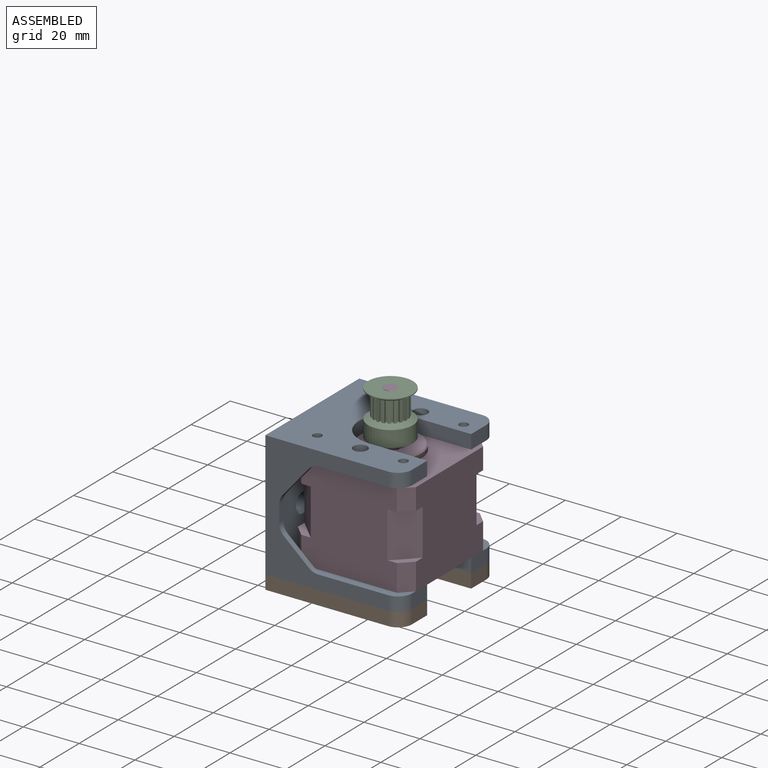
[diagram: assembled view]
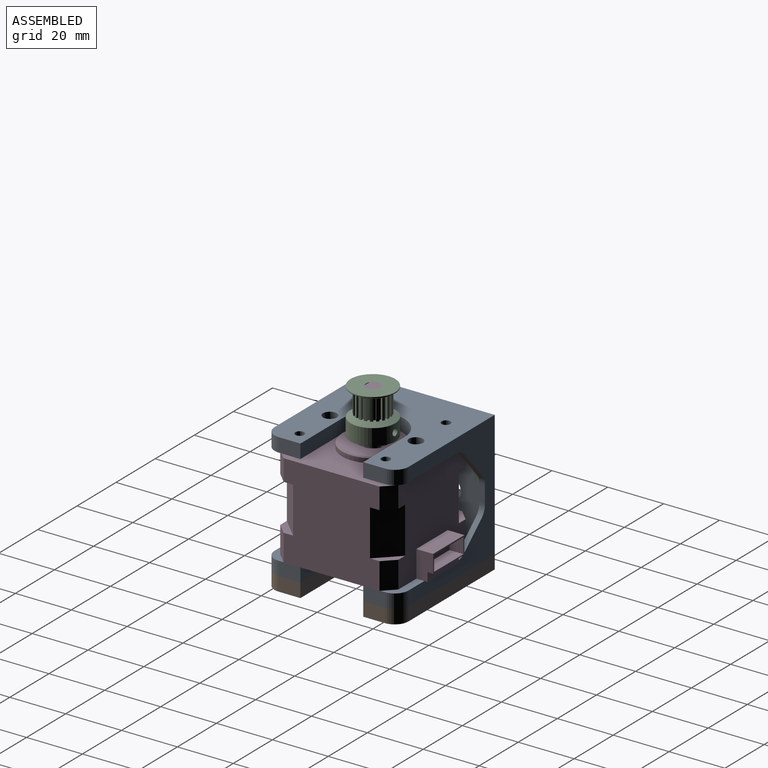
[diagram: assembled view, second angle]
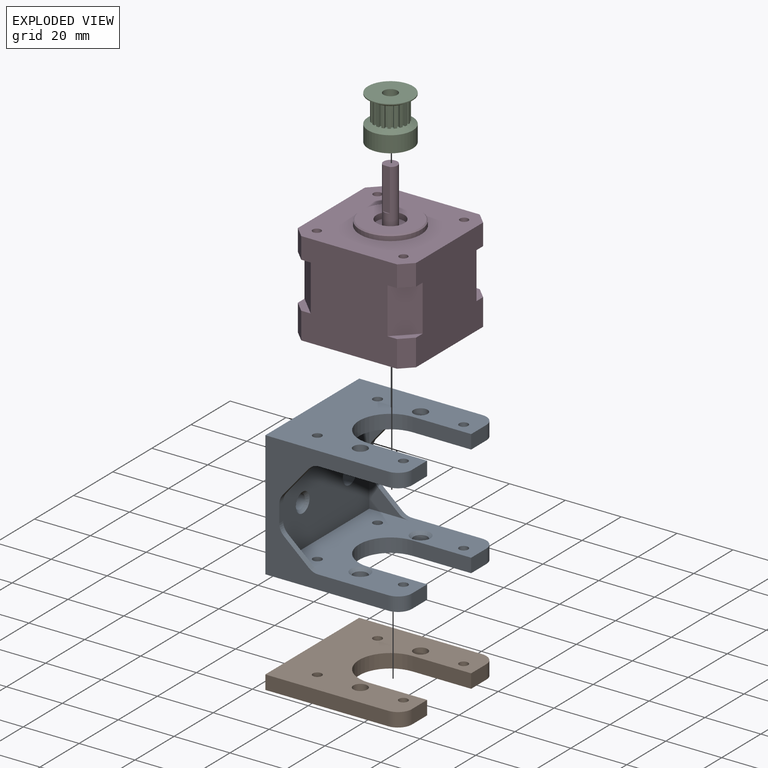
[diagram: exploded view]
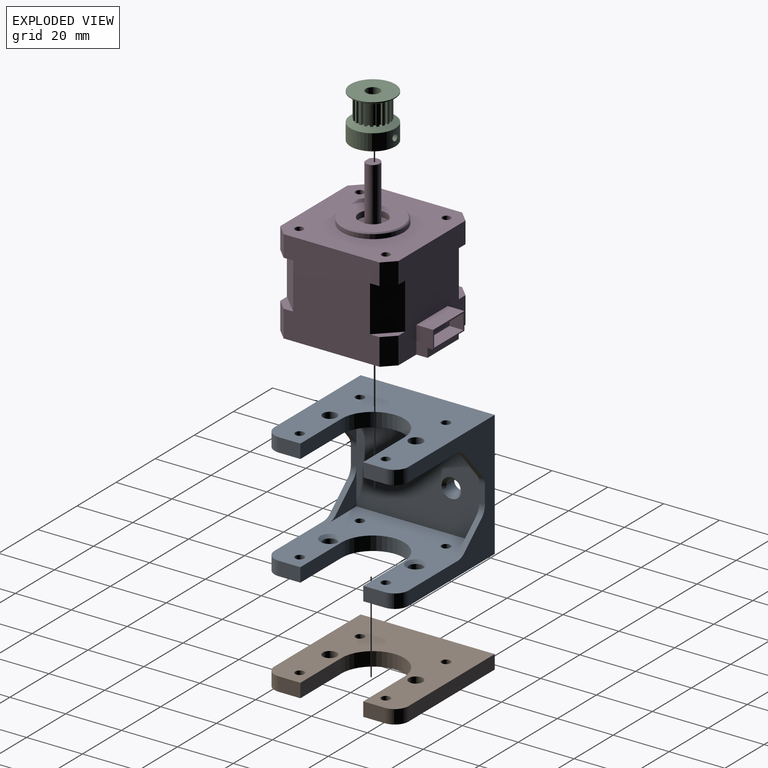
[diagram: exploded view, second angle]
ASSEMBLY  parts=4 mates=7
PART A: 58 faces, bbox 49x48x45 mm
  f0: plane 48x35mm, normal (1,0,0), area 1487.8mm2, adj f1,f6,f7,f9,f33,f35,f37,f39
  f1: plane 48x44mm, normal (0,0,-1), area 1263.6mm2, adj f0,f2,f7,f9,f12,f23,f24,f25
  f2: plane 7.75x5mm, normal (1,0,0), area 38.7mm2, adj f1,f5,f28,f43
  f3: plane 7.75x5mm, normal (1,0,0), area 38.8mm2, adj f4,f6,f19,f40
  f4: plane 49x48mm, normal (0,0,-1), area 1598.5mm2, adj f3,f7,f9,f11,f13,f14,f15,f16
  f5: plane 49x48mm, normal (0,0,1), area 1598.5mm2, adj f2,f7,f9,f11,f12,f23,f24,f25
  f6: plane 48x44mm, normal (0,0,1), area 1265.3mm2, adj f0,f3,f7,f9,f13,f14,f15,f16
  f7: plane 45x44mm, normal (0,1,0), area 765.5mm2, adj f0,f1,f4,f5,f6,f11,f32,f34
  f8: cylinder r=2.5mm len=5mm, axis (-1,0,0), area 62.8mm2, adj f11,f57
  f9: plane 45x44mm, normal (0,-1,0), area 765.5mm2, adj f0,f1,f4,f5,f6,f11,f36,f38
  f10: cylinder r=2.5mm len=5mm, axis (-1,0,0), area 62.8mm2, adj f11,f56
  f11: plane 48x45mm, normal (-1,0,0), area 2120.7mm2, adj f4,f5,f7,f8,f9,f10
  f12: plane 7.75x5mm, normal (1,0,0), area 38.8mm2, adj f1,f5,f30,f42
  f13: plane 7.75x5mm, normal (1,0,0), area 38.8mm2, adj f4,f6,f21,f41
  f14: cylinder r=1.6mm len=5mm, axis (0,0,1), area 50.3mm2, adj f4,f6
  f15: cylinder r=1.6mm len=5mm, axis (0,0,1), area 50.3mm2, adj f4,f6
  f16: cylinder r=1.6mm len=5mm, axis (0,0,1), area 50.3mm2, adj f4,f6
  f17: cylinder r=2.5mm len=5mm, axis (0,0,1), area 62.8mm2, adj f4,f44
  f18: cylinder r=2.5mm len=5mm, axis (0,0,1), area 62.8mm2, adj f4,f45
  f19: plane 21x5mm, normal (0,1,0), area 105mm2, adj f3,f4,f6,f20
  f20: cylinder r=11.25mm len=22.5mm, axis (0,0,1), area 176.7mm2, adj f4,f6,f19,f21
  f21: plane 21x5mm, normal (0,-1,0), area 105mm2, adj f4,f6,f13,f20
  f22: cylinder r=1.6mm len=5mm, axis (0,0,1), area 50.3mm2, adj f4,f6
  f23: cylinder r=1.6mm len=5mm, axis (0,0,1), area 50.3mm2, adj f1,f5
  f24: cylinder r=1.6mm len=5mm, axis (0,0,1), area 50.3mm2, adj f1,f5
  f25: cylinder r=1.6mm len=5mm, axis (0,0,1), area 50.3mm2, adj f1,f5
  f26: cylinder r=2.5mm len=5mm, axis (0,0,1), area 62.8mm2, adj f5,f46
  f27: cylinder r=2.5mm len=5mm, axis (0,0,1), area 62.8mm2, adj f5,f47
  f28: plane 21x5mm, normal (0,1,0), area 105mm2, adj f1,f2,f5,f29
  f29: cylinder r=11.25mm len=22.5mm, axis (0,0,1), area 176.7mm2, adj f1,f5,f28,f30
  f30: plane 21x5mm, normal (0,-1,0), area 105mm2, adj f1,f5,f12,f29
  f31: cylinder r=1.6mm len=5mm, axis (0,0,1), area 50.3mm2, adj f1,f5
  f32: plane 10.96x9.31mm, normal (0.76,0,-0.65), area 28.8mm2, adj f7,f33,f54,f55
  f33: plane 15.96x14.31mm, normal (0,-1,0), area 85.8mm2, adj f0,f1,f32,f54,f55
  f34: plane 8.89x7.84mm, normal (0.66,0,0.75), area 23.7mm2, adj f7,f35,f52,f53
  f35: plane 13.89x12.84mm, normal (0,-1,0), area 64.6mm2, adj f0,f6,f34,f52,f53
  f36: plane 10.96x9.31mm, normal (0.76,0,-0.65), area 28.8mm2, adj f9,f37,f50,f51
  f37: plane 15.96x14.31mm, normal (0,1,0), area 85.8mm2, adj f0,f1,f36,f50,f51
  f38: plane 8.89x7.84mm, normal (0.66,0,0.75), area 23.7mm2, adj f9,f39,f48,f49
  f39: plane 13.89x12.84mm, normal (0,1,0), area 64.6mm2, adj f0,f6,f38,f48,f49
  f40: cylinder r=5mm len=5mm, axis (0,0,1), area 39.3mm2, adj f3,f4,f6,f9
  f41: cylinder r=5mm len=5mm, axis (0,0,-1), area 39.3mm2, adj f4,f6,f7,f13
  f42: cylinder r=5mm len=5mm, axis (0,0,-1), area 39.3mm2, adj f1,f5,f7,f12
  f43: cylinder r=5mm len=5mm, axis (0,0,1), area 39.3mm2, adj f1,f2,f5,f9
  f44: cone r=3.5mm half-angle=45deg, axis (0,0,1), area 26.7mm2, adj f6,f17
  f45: cone r=2.5mm half-angle=45deg, axis (0,0,1), area 26.7mm2, adj f6,f18
  f46: cone r=2.5mm half-angle=45deg, axis (0,0,-1), area 26.7mm2, adj f1,f26
  f47: cone r=3.5mm half-angle=45deg, axis (0,0,-1), area 26.7mm2, adj f1,f27
  f48: cylinder r=5mm len=3.31mm, axis (0,1,0), area 7.2mm2, adj f6,f9,f38,f39
  f49: cylinder r=5mm len=3.75mm, axis (0,1,0), area 8.5mm2, adj f0,f9,f38,f39
  f50: cylinder r=5mm len=3.24mm, axis (0,-1,0), area 7mm2, adj f0,f9,f36,f37
  f51: cylinder r=5mm len=3.81mm, axis (0,1,0), area 8.7mm2, adj f1,f9,f36,f37
  f52: cylinder r=5mm len=3.31mm, axis (0,1,0), area 7.2mm2, adj f6,f7,f34,f35
  f53: cylinder r=5mm len=3.75mm, axis (0,1,0), area 8.5mm2, adj f0,f7,f34,f35
  f54: cylinder r=5mm len=3.24mm, axis (0,-1,0), area 7mm2, adj f0,f7,f32,f33
  f55: cylinder r=5mm len=3.81mm, axis (0,1,0), area 8.7mm2, adj f1,f7,f32,f33
  f56: cone r=3.5mm half-angle=45deg, axis (1,0,0), area 26.7mm2, adj f0,f10
  f57: cone r=2.5mm half-angle=45deg, axis (1,0,0), area 26.7mm2, adj f0,f8
PART B: 20 faces, bbox 49x48x5 mm
  f0: plane 49x48mm, normal (0,0,-1), area 1560.8mm2, adj f1,f3,f4,f5,f6,f7,f8,f9
  f1: plane 7.75x5mm, normal (1,0,0), area 38.7mm2, adj f0,f2,f12,f17
  f2: plane 49x48mm, normal (0,0,1), area 1598.5mm2, adj f1,f3,f4,f5,f6,f7,f8,f9
  f3: plane 44x5mm, normal (0,1,0), area 220mm2, adj f0,f2,f5,f16
  f4: plane 44x5mm, normal (0,-1,0), area 220mm2, adj f0,f2,f5,f17
  f5: plane 48x5mm, normal (-1,0,0), area 240mm2, adj f0,f2,f3,f4
  f6: plane 7.75x5mm, normal (1,0,0), area 38.8mm2, adj f0,f2,f14,f16
  f7: cylinder r=1.6mm len=5mm, axis (0,0,1), area 50.3mm2, adj f0,f2
  f8: cylinder r=1.6mm len=5mm, axis (0,0,1), area 50.3mm2, adj f0,f2
  f9: cylinder r=1.6mm len=5mm, axis (0,0,1), area 50.3mm2, adj f0,f2
  f10: cylinder r=2.5mm len=5mm, axis (0,0,1), area 62.8mm2, adj f2,f18
  f11: cylinder r=2.5mm len=5mm, axis (0,0,1), area 62.8mm2, adj f2,f19
  f12: plane 21x5mm, normal (0,1,0), area 105mm2, adj f0,f1,f2,f13
  f13: cylinder r=11.25mm len=22.5mm, axis (0,0,1), area 176.7mm2, adj f0,f2,f12,f14
  f14: plane 21x5mm, normal (0,-1,0), area 105mm2, adj f0,f2,f6,f13
  f15: cylinder r=1.6mm len=5mm, axis (0,0,1), area 50.3mm2, adj f0,f2
  f16: cylinder r=5mm len=5mm, axis (0,0,-1), area 39.3mm2, adj f0,f2,f3,f6
  f17: cylinder r=5mm len=5mm, axis (0,0,1), area 39.3mm2, adj f0,f1,f2,f4
  f18: cone r=2.5mm half-angle=45deg, axis (0,0,-1), area 26.7mm2, adj f0,f10
  f19: cone r=3.5mm half-angle=45deg, axis (0,0,-1), area 26.7mm2, adj f0,f11
PART C: 128 faces, bbox 15.9x16x16 mm
  f0: cylinder r=8mm len=16mm, axis (1,0,0), area 288.9mm2, adj f2,f3,f7
  f1: cylinder r=2.5mm len=15.9mm, axis (-1,0,0), area 244.7mm2, adj f2,f3,f5
  f2: plane 16x16mm, normal (-1,0,0), area 181.4mm2, adj f0,f1
  f3: cylinder r=1.25mm len=5.84mm, axis (0,1,0), area 44.1mm2, adj f0,f1
  f4: cylinder r=8mm len=16mm, axis (-1,0,0), area 17.4mm2, adj f5,f6
  f5: plane 16x16mm, normal (1,0,0), area 181.4mm2, adj f1,f4
  f6: cone r=6mm half-angle=60deg, axis (1,0,0), area 101.6mm2, adj f4,f11,f13,f17,f19,f23,f25,f29
  f7: cone r=6mm half-angle=60deg, axis (-1,0,0), area 101.6mm2, adj f0,f11,f14,f17,f20,f23,f26,f29
  f8: cylinder r=5mm len=7.4mm, axis (-1,0,0), area 5.5mm2, adj f9,f124,f125,f126
  f9: plane 7.4x0.99mm, normal (0,-0.99,-0.15), area 7.4mm2, adj f8,f11,f124,f125
  f10: cylinder r=5mm len=7.4mm, axis (-1,0,0), area 5.5mm2, adj f12,f13,f14,f15
  f11: cylinder r=6mm len=7.4mm, axis (-1,0,0), area 7.4mm2, adj f6,f7,f9,f12
  f12: plane 7.4x0.95mm, normal (0,0.95,0.31), area 7.4mm2, adj f10,f11,f13,f14
  f13: plane 1.23x1.13mm, normal (-1,0,0), area 0.8mm2, adj f6,f10,f12,f15
  f14: plane 1.23x1.13mm, normal (1,0,0), area 0.8mm2, adj f7,f10,f12,f15
  f15: plane 7.4x0.9mm, normal (0,-0.89,-0.45), area 7.4mm2, adj f10,f13,f14,f17
  f16: cylinder r=5mm len=7.4mm, axis (-1,0,0), area 5.5mm2, adj f18,f19,f20,f21
  f17: cylinder r=6mm len=7.4mm, axis (-1,0,0), area 7.4mm2, adj f6,f7,f15,f18
  f18: plane 7.4x0.81mm, normal (0,0.81,0.59), area 7.4mm2, adj f16,f17,f19,f20
  f19: plane 1.29x1.27mm, normal (-1,0,0), area 0.8mm2, adj f6,f16,f18,f21
  f20: plane 1.29x1.27mm, normal (1,0,0), area 0.8mm2, adj f7,f16,f18,f21
  f21: plane 7.4x0.71mm, normal (0,-0.71,-0.7), area 7.4mm2, adj f16,f19,f20,f23
  f22: cylinder r=5mm len=7.4mm, axis (-1,0,0), area 5.5mm2, adj f24,f25,f26,f27
  f23: cylinder r=6mm len=7.4mm, axis (-1,0,0), area 7.4mm2, adj f6,f7,f21,f24
  f24: plane 7.4x0.81mm, normal (0,0.59,0.81), area 7.4mm2, adj f22,f23,f25,f26
  f25: plane 1.28x1.22mm, normal (-1,0,0), area 0.8mm2, adj f6,f22,f24,f27
  f26: plane 1.28x1.22mm, normal (1,0,0), area 0.8mm2, adj f7,f22,f24,f27
  f27: plane 7.4x0.89mm, normal (0,-0.46,-0.89), area 7.4mm2, adj f22,f25,f26,f29
  f28: cylinder r=5mm len=7.4mm, axis (-1,0,0), area 5.5mm2, adj f30,f31,f32,f33
  f29: cylinder r=6mm len=7.4mm, axis (-1,0,0), area 7.4mm2, adj f6,f7,f27,f30
  f30: plane 7.4x0.95mm, normal (0,0.31,0.95), area 7.4mm2, adj f28,f29,f31,f32
  f31: plane 1.16x1.03mm, normal (-1,0,0), area 0.8mm2, adj f6,f28,f30,f33
  f32: plane 1.16x1.03mm, normal (1,0,0), area 0.8mm2, adj f7,f28,f30,f33
  f33: plane 7.4x0.99mm, normal (0,-0.17,-0.99), area 7.4mm2, adj f28,f31,f32,f35
  f34: cylinder r=5mm len=7.4mm, axis (-1,0,0), area 5.5mm2, adj f36,f37,f38,f39
  f35: cylinder r=6mm len=7.4mm, axis (-1,0,0), area 7.4mm2, adj f6,f7,f33,f36
  f36: plane 7.4x1mm, normal (0,0,1), area 7.4mm2, adj f34,f35,f37,f38
  f37: plane 1.06x0.89mm, normal (-1,0,0), area 0.8mm2, adj f6,f34,f36,f39
  f38: plane 1.06x0.89mm, normal (1,0,0), area 0.8mm2, adj f7,f34,f36,f39
  f39: plane 7.4x0.99mm, normal (0,0.15,-0.99), area 7.4mm2, adj f34,f37,f38,f41
  f40: cylinder r=5mm len=7.4mm, axis (-1,0,0), area 5.5mm2, adj f42,f43,f44,f45
  f41: cylinder r=6mm len=7.4mm, axis (-1,0,0), area 7.4mm2, adj f6,f7,f39,f42
  f42: plane 7.4x0.95mm, normal (0,-0.31,0.95), area 7.4mm2, adj f40,f41,f43,f44
  f43: plane 1.23x1.13mm, normal (-1,0,0), area 0.8mm2, adj f6,f40,f42,f45
  f44: plane 1.23x1.13mm, normal (1,0,0), area 0.8mm2, adj f7,f40,f42,f45
  f45: plane 7.4x0.9mm, normal (0,0.45,-0.89), area 7.4mm2, adj f40,f43,f44,f47
  f46: cylinder r=5mm len=7.4mm, axis (-1,0,0), area 5.5mm2, adj f48,f49,f50,f51
  f47: cylinder r=6mm len=7.4mm, axis (-1,0,0), area 7.4mm2, adj f6,f7,f45,f48
  f48: plane 7.4x0.81mm, normal (0,-0.59,0.81), area 7.4mm2, adj f46,f47,f49,f50
  f49: plane 1.29x1.27mm, normal (-1,0,0), area 0.8mm2, adj f6,f46,f48,f51
  f50: plane 1.29x1.27mm, normal (1,0,0), area 0.8mm2, adj f7,f46,f48,f51
  f51: plane 7.4x0.71mm, normal (0,0.7,-0.71), area 7.4mm2, adj f46,f49,f50,f53
  f52: cylinder r=5mm len=7.4mm, axis (-1,0,0), area 5.5mm2, adj f54,f55,f56,f57
  f53: cylinder r=6mm len=7.4mm, axis (-1,0,0), area 7.4mm2, adj f6,f7,f51,f54
  f54: plane 7.4x0.81mm, normal (0,-0.81,0.59), area 7.4mm2, adj f52,f53,f55,f56
  f55: plane 1.28x1.22mm, normal (-1,0,0), area 0.8mm2, adj f6,f52,f54,f57
  f56: plane 1.28x1.22mm, normal (1,0,0), area 0.8mm2, adj f7,f52,f54,f57
  f57: plane 7.4x0.89mm, normal (0,0.89,-0.46), area 7.4mm2, adj f52,f55,f56,f59
  f58: cylinder r=5mm len=7.4mm, axis (-1,0,0), area 5.5mm2, adj f60,f61,f62,f63
  f59: cylinder r=6mm len=7.4mm, axis (-1,0,0), area 7.4mm2, adj f6,f7,f57,f60
  f60: plane 7.4x0.95mm, normal (0,-0.95,0.31), area 7.4mm2, adj f58,f59,f61,f62
  f61: plane 1.16x1.03mm, normal (-1,0,0), area 0.8mm2, adj f6,f58,f60,f63
  f62: plane 1.16x1.03mm, normal (1,0,0), area 0.8mm2, adj f7,f58,f60,f63
  f63: plane 7.4x0.99mm, normal (0,0.99,-0.17), area 7.4mm2, adj f58,f61,f62,f65
  f64: cylinder r=5mm len=7.4mm, axis (-1,0,0), area 5.5mm2, adj f66,f67,f68,f69
  f65: cylinder r=6mm len=7.4mm, axis (-1,0,0), area 7.4mm2, adj f6,f7,f63,f66
  f66: plane 7.4x1mm, normal (0,-1,0), area 7.4mm2, adj f64,f65,f67,f68
  f67: plane 1.06x0.89mm, normal (-1,0,0), area 0.8mm2, adj f6,f64,f66,f69
  f68: plane 1.06x0.89mm, normal (1,0,0), area 0.8mm2, adj f7,f64,f66,f69
  f69: plane 7.4x0.99mm, normal (0,0.99,0.15), area 7.4mm2, adj f64,f67,f68,f71
  f70: cylinder r=5mm len=7.4mm, axis (-1,0,0), area 5.5mm2, adj f72,f73,f74,f75
  f71: cylinder r=6mm len=7.4mm, axis (-1,0,0), area 7.4mm2, adj f6,f7,f69,f72
  f72: plane 7.4x0.95mm, normal (0,-0.95,-0.31), area 7.4mm2, adj f70,f71,f73,f74
  f73: plane 1.23x1.13mm, normal (-1,0,0), area 0.8mm2, adj f6,f70,f72,f75
  f74: plane 1.23x1.13mm, normal (1,0,0), area 0.8mm2, adj f7,f70,f72,f75
  f75: plane 7.4x0.9mm, normal (0,0.89,0.45), area 7.4mm2, adj f70,f73,f74,f77
  f76: cylinder r=5mm len=7.4mm, axis (-1,0,0), area 5.5mm2, adj f78,f79,f80,f81
  f77: cylinder r=6mm len=7.4mm, axis (-1,0,0), area 7.4mm2, adj f6,f7,f75,f78
  f78: plane 7.4x0.81mm, normal (0,-0.81,-0.59), area 7.4mm2, adj f76,f77,f79,f80
  f79: plane 1.29x1.27mm, normal (-1,0,0), area 0.8mm2, adj f6,f76,f78,f81
  f80: plane 1.29x1.27mm, normal (1,0,0), area 0.8mm2, adj f7,f76,f78,f81
  f81: plane 7.4x0.71mm, normal (0,0.71,0.7), area 7.4mm2, adj f76,f79,f80,f83
  f82: cylinder r=5mm len=7.4mm, axis (-1,0,0), area 5.5mm2, adj f84,f85,f86,f87
  f83: cylinder r=6mm len=7.4mm, axis (-1,0,0), area 7.4mm2, adj f6,f7,f81,f84
  f84: plane 7.4x0.81mm, normal (0,-0.59,-0.81), area 7.4mm2, adj f82,f83,f85,f86
  f85: plane 1.28x1.22mm, normal (-1,0,0), area 0.8mm2, adj f6,f82,f84,f87
  f86: plane 1.28x1.22mm, normal (1,0,0), area 0.8mm2, adj f7,f82,f84,f87
  f87: plane 7.4x0.89mm, normal (0,0.46,0.89), area 7.4mm2, adj f82,f85,f86,f89
  f88: cylinder r=5mm len=7.4mm, axis (-1,0,0), area 5.5mm2, adj f90,f91,f92,f93
  f89: cylinder r=6mm len=7.4mm, axis (-1,0,0), area 7.4mm2, adj f6,f7,f87,f90
  f90: plane 7.4x0.95mm, normal (0,-0.31,-0.95), area 7.4mm2, adj f88,f89,f91,f92
  f91: plane 1.16x1.03mm, normal (-1,0,0), area 0.8mm2, adj f6,f88,f90,f93
  f92: plane 1.16x1.03mm, normal (1,0,0), area 0.8mm2, adj f7,f88,f90,f93
  f93: plane 7.4x0.99mm, normal (0,0.17,0.99), area 7.4mm2, adj f88,f91,f92,f95
  f94: cylinder r=5mm len=7.4mm, axis (-1,0,0), area 5.5mm2, adj f96,f97,f98,f99
  f95: cylinder r=6mm len=7.4mm, axis (-1,0,0), area 7.4mm2, adj f6,f7,f93,f96
  f96: plane 7.4x1mm, normal (0,0,-1), area 7.4mm2, adj f94,f95,f97,f98
  f97: plane 1.06x0.89mm, normal (-1,0,0), area 0.8mm2, adj f6,f94,f96,f99
  f98: plane 1.06x0.89mm, normal (1,0,0), area 0.8mm2, adj f7,f94,f96,f99
  f99: plane 7.4x0.99mm, normal (0,-0.15,0.99), area 7.4mm2, adj f94,f97,f98,f101
  f100: cylinder r=5mm len=7.4mm, axis (-1,0,0), area 5.5mm2, adj f102,f103,f104,f105
  f101: cylinder r=6mm len=7.4mm, axis (-1,0,0), area 7.4mm2, adj f6,f7,f99,f102
  f102: plane 7.4x0.95mm, normal (0,0.31,-0.95), area 7.4mm2, adj f100,f101,f103,f104
  f103: plane 1.23x1.13mm, normal (-1,0,0), area 0.8mm2, adj f6,f100,f102,f105
  f104: plane 1.23x1.13mm, normal (1,0,0), area 0.8mm2, adj f7,f100,f102,f105
  f105: plane 7.4x0.9mm, normal (0,-0.45,0.89), area 7.4mm2, adj f100,f103,f104,f107
  f106: cylinder r=5mm len=7.4mm, axis (-1,0,0), area 5.5mm2, adj f108,f109,f110,f111
  f107: cylinder r=6mm len=7.4mm, axis (-1,0,0), area 7.4mm2, adj f6,f7,f105,f108
  f108: plane 7.4x0.81mm, normal (0,0.59,-0.81), area 7.4mm2, adj f106,f107,f109,f110
  f109: plane 1.29x1.27mm, normal (-1,0,0), area 0.8mm2, adj f6,f106,f108,f111
  f110: plane 1.29x1.27mm, normal (1,0,0), area 0.8mm2, adj f7,f106,f108,f111
  f111: plane 7.4x0.71mm, normal (0,-0.7,0.71), area 7.4mm2, adj f106,f109,f110,f113
  f112: cylinder r=5mm len=7.4mm, axis (-1,0,0), area 5.5mm2, adj f114,f115,f116,f117
  f113: cylinder r=6mm len=7.4mm, axis (-1,0,0), area 7.4mm2, adj f6,f7,f111,f114
  f114: plane 7.4x0.81mm, normal (0,0.81,-0.59), area 7.4mm2, adj f112,f113,f115,f116
  f115: plane 1.28x1.22mm, normal (-1,0,0), area 0.8mm2, adj f6,f112,f114,f117
  f116: plane 1.28x1.22mm, normal (1,0,0), area 0.8mm2, adj f7,f112,f114,f117
  f117: plane 7.4x0.89mm, normal (0,-0.89,0.46), area 7.4mm2, adj f112,f115,f116,f119
  f118: cylinder r=5mm len=7.4mm, axis (-1,0,0), area 5.5mm2, adj f120,f121,f122,f123
  f119: cylinder r=6mm len=7.4mm, axis (-1,0,0), area 7.4mm2, adj f6,f7,f117,f120
  f120: plane 7.4x0.95mm, normal (0,0.95,-0.31), area 7.4mm2, adj f118,f119,f121,f122
  f121: plane 1.16x1.03mm, normal (-1,0,0), area 0.8mm2, adj f6,f118,f120,f123
  f122: plane 1.16x1.03mm, normal (1,0,0), area 0.8mm2, adj f7,f118,f120,f123
  f123: plane 7.4x0.99mm, normal (0,-0.99,0.17), area 7.4mm2, adj f118,f121,f122,f127
  f124: plane 1.06x0.89mm, normal (-1,0,0), area 0.8mm2, adj f6,f8,f9,f126
  f125: plane 1.06x0.89mm, normal (1,0,0), area 0.8mm2, adj f7,f8,f9,f126
  f126: plane 7.4x1mm, normal (0,1,0), area 7.4mm2, adj f8,f124,f125,f127
  f127: cylinder r=6mm len=7.4mm, axis (-1,0,0), area 7.4mm2, adj f6,f7,f123,f126
PART D: 73 faces, bbox 42.3x48.3x53.8 mm
  f0: cone r=10.6mm half-angle=45deg, axis (0,0,-1), area 38.4mm2, adj f10,f23
  f1: cylinder r=1.5mm len=3mm, axis (0,0,1), area 28.3mm2, adj f35,f53
  f2: cylinder r=1.5mm len=3mm, axis (0,0,1), area 28.3mm2, adj f35,f52
  f3: cylinder r=1.5mm len=3mm, axis (0,0,1), area 28.3mm2, adj f35,f51
  f4: cylinder r=1.5mm len=3mm, axis (0,0,1), area 28.3mm2, adj f35,f50
  f5: cylinder r=4.5mm len=9mm, axis (0,0,1), area 84.8mm2, adj f35,f49
  f6: cylinder r=1.5mm len=4.5mm, axis (0,0,-1), area 42.4mm2, adj f24,f67
  f7: cylinder r=1.5mm len=4.5mm, axis (0,0,-1), area 42.4mm2, adj f24,f68
  f8: cylinder r=1.5mm len=4.5mm, axis (0,0,-1), area 42.4mm2, adj f24,f65
  f9: cylinder r=1.5mm len=4.5mm, axis (0,0,-1), area 42.4mm2, adj f24,f66
  f10: cylinder r=11mm len=22mm, axis (0,0,1), area 110.6mm2, adj f0,f24
  f11: cylinder r=5mm len=10mm, axis (0,0,-1), area 62.8mm2, adj f22,f23
  f12: cylinder r=2.5mm len=20mm, axis (0,0,1), area 274mm2, adj f19,f20,f21,f22
  f13: plane 9.6x9.15mm, normal (0,1,0), area 87.8mm2, adj f35,f39,f46,f54,f69
  f14: plane 9.6x9.15mm, normal (0,1,0), area 87.8mm2, adj f34,f35,f40,f46,f55
  f15: plane 34.3x7.65mm, normal (0,1,0), area 262.4mm2, adj f24,f27,f28,f43,f44,f46
  f16: plane 34.3x7.65mm, normal (1,0,0), area 262.4mm2, adj f18,f24,f26,f27,f44,f45
  f17: plane 34.3x9.6mm, normal (-1,0,0), area 329.3mm2, adj f34,f35,f40,f42,f47,f71
  f18: plane 27.5x16.5mm, normal (1,0,0), area 453.8mm2, adj f16,f30,f31,f72
  f19: plane 2.55x0.35mm, normal (0,0,1), area 0.6mm2, adj f12,f20
  f20: plane 15x2.55mm, normal (0,-1,0), area 38.3mm2, adj f12,f19,f21
  f21: plane 5x4.65mm, normal (0,0,1), area 19mm2, adj f12,f20
  f22: plane 10x10mm, normal (0,0,1), area 58.9mm2, adj f11,f12
  f23: plane 21.2x21.2mm, normal (0,0,1), area 274.4mm2, adj f0,f11
  f24: plane 42.3x42.3mm, normal (0,0,1), area 1348.9mm2, adj f6,f7,f8,f9,f10,f15,f16,f26
  f25: plane 7.4x7.4mm, normal (0,0,-1), area 19.4mm2, adj f29,f33,f36,f38
  f26: plane 7.65x4mm, normal (0.71,-0.71,0), area 43.3mm2, adj f16,f24,f36,f45
  f27: plane 7.65x4mm, normal (0.71,0.71,0), area 43.3mm2, adj f15,f16,f24,f44
  f28: plane 7.65x4mm, normal (-0.71,0.71,0), area 43.3mm2, adj f15,f24,f38,f43
  f29: plane 7.65x4mm, normal (-0.71,-0.71,0), area 43.3mm2, adj f24,f25,f36,f38
  f30: plane 16.5x7.4mm, normal (0.71,-0.71,0), area 172.7mm2, adj f18,f45,f48,f70
  f31: plane 16.5x7.4mm, normal (0.71,0.71,0), area 172.7mm2, adj f18,f44,f46,f69
  f32: plane 16.5x7.4mm, normal (-0.71,0.71,0), area 172.7mm2, adj f34,f43,f46,f47
  f33: plane 16.5x7.4mm, normal (-0.71,-0.71,0), area 172.7mm2, adj f25,f47,f48,f71
  f34: plane 7.4x7.4mm, normal (0,0,1), area 19.4mm2, adj f14,f17,f32,f40
  f35: plane 46.3x42.3mm, normal (0,0,-1), area 1729.4mm2, adj f1,f2,f3,f4,f5,f13,f14,f17
  f36: plane 34.3x7.65mm, normal (0,-1,0), area 262.4mm2, adj f24,f25,f26,f29,f45,f48
  f37: plane 34.3x9.6mm, normal (0,-1,0), area 329.3mm2, adj f35,f41,f42,f48,f70,f71
  f38: plane 34.3x7.65mm, normal (-1,0,0), area 262.4mm2, adj f24,f25,f28,f29,f43,f47
  f39: plane 9.6x4mm, normal (0.71,0.71,0), area 54.3mm2, adj f13,f35,f69,f72
  f40: plane 9.6x4mm, normal (-0.71,0.71,0), area 54.3mm2, adj f14,f17,f34,f35
  f41: plane 9.6x4mm, normal (0.71,-0.71,0), area 54.3mm2, adj f35,f37,f70,f72
  f42: plane 9.6x4mm, normal (-0.71,-0.71,0), area 54.3mm2, adj f17,f35,f37,f71
  f43: plane 7.4x7.4mm, normal (0,0,-1), area 19.4mm2, adj f15,f28,f32,f38
  f44: plane 7.4x7.4mm, normal (0,0,-1), area 19.4mm2, adj f15,f16,f27,f31
  f45: plane 7.4x7.4mm, normal (0,0,-1), area 19.4mm2, adj f16,f26,f30,f36
  f46: plane 27.5x16.5mm, normal (0,1,0), area 453.7mm2, adj f13,f14,f15,f31,f32,f57
  f47: plane 27.5x16.5mm, normal (-1,0,0), area 453.8mm2, adj f17,f32,f33,f38
  f48: plane 27.5x16.5mm, normal (0,-1,0), area 453.8mm2, adj f30,f33,f36,f37
  f49: plane 9x9mm, normal (0,0,-1), area 63.6mm2, adj f5
  f50: plane 3x3mm, normal (0,0,-1), area 7.1mm2, adj f4
  f51: plane 3x3mm, normal (0,0,-1), area 7.1mm2, adj f3
  f52: plane 3x3mm, normal (0,0,-1), area 7.1mm2, adj f2
  f53: plane 3x3mm, normal (0,0,-1), area 7.1mm2, adj f1
  f54: plane 9.6x6mm, normal (1,0,0), area 51.2mm2, adj f13,f35,f56,f57,f58,f59
  f55: plane 9.6x6mm, normal (-1,0,0), area 51.2mm2, adj f14,f35,f56,f57,f58,f59
  f56: plane 16x3.2mm, normal (0,1,0), area 51.2mm2, adj f35,f54,f55,f58
  f57: plane 16x6mm, normal (0,0,1), area 96mm2, adj f46,f54,f55,f59
  f58: plane 16x2mm, normal (0,0,-1), area 32mm2, adj f54,f55,f56,f59
  f59: plane 16x6.4mm, normal (0,1,0), area 19.9mm2, adj f54,f55,f57,f58,f60,f61,f62,f63
  f60: plane 5.5x5mm, normal (-1,0,0), area 27.5mm2, adj f59,f61,f63,f64
  f61: plane 15x5mm, normal (0,0,1), area 75mm2, adj f59,f60,f62,f64
  f62: plane 5.5x5mm, normal (1,0,0), area 27.5mm2, adj f59,f61,f63,f64
  f63: plane 15x5mm, normal (0,0,-1), area 75mm2, adj f59,f60,f62,f64
  f64: plane 15x5.5mm, normal (0,1,0), area 82.5mm2, adj f60,f61,f62,f63
  f65: plane 3x3mm, normal (0,0,1), area 7.1mm2, adj f8
  f66: plane 3x3mm, normal (0,0,1), area 7.1mm2, adj f9
  f67: plane 3x3mm, normal (0,0,1), area 7.1mm2, adj f6
  f68: plane 3x3mm, normal (0,0,1), area 7.1mm2, adj f7
  f69: plane 7.4x7.4mm, normal (0,0,1), area 19.4mm2, adj f13,f31,f39,f72
  f70: plane 7.4x7.4mm, normal (0,0,1), area 19.4mm2, adj f30,f37,f41,f72
  f71: plane 7.4x7.4mm, normal (0,0,1), area 19.4mm2, adj f17,f33,f37,f42
  f72: plane 34.3x9.6mm, normal (1,0,0), area 329.3mm2, adj f18,f35,f39,f41,f69,f70
PLACE A t=(-14.8,3.23,-6.06)mm fixed
PLACE B rot(axis=(0,0,1),0deg) t=(-14.8,3.23,-51.06)mm
PLACE C rot(axis=(0.71,0,0.71),180deg) t=(13.2,3.23,23.79)mm
PLACE D t=(13.2,3.23,-4.06)mm
MATE slider D.f11 <-> A.f20  axis (0,0,1) through (13.2,3.23,32.69)mm
MATE planar D.f7 <-> A.f6  axis (0,0,-1) through (28.7,18.73,-21.06)mm
MATE planar C.f1 <-> D.f21  axis (0,0,1) through (13.2,3.23,32.69)mm
MATE slider B.f13 <-> A.f20  axis (0,0,1) through (13.2,3.23,-28.56)mm
MATE cylindrical D.f11 <-> C.f1  axis (0,0,1) through (13.2,3.23,14.69)mm
MATE planar D.f38 <-> A.f10  axis (-1,0,0) through (-7.95,3.23,8.87)mm
MATE planar A.f14 <-> B.f2  axis (0,0,-1) through (28.6,-12.17,-26.06)mm
